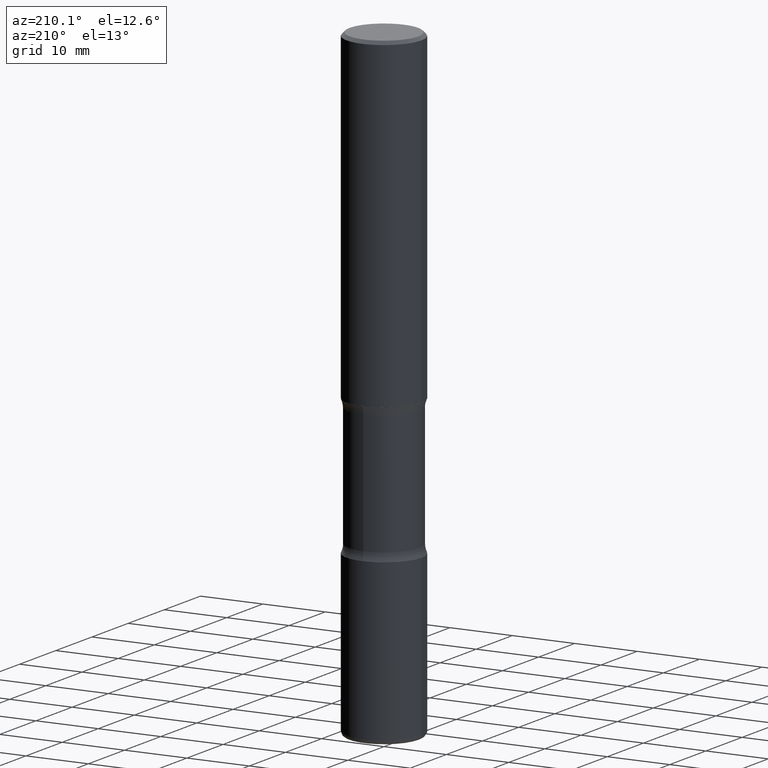
[diagram: clean part render]
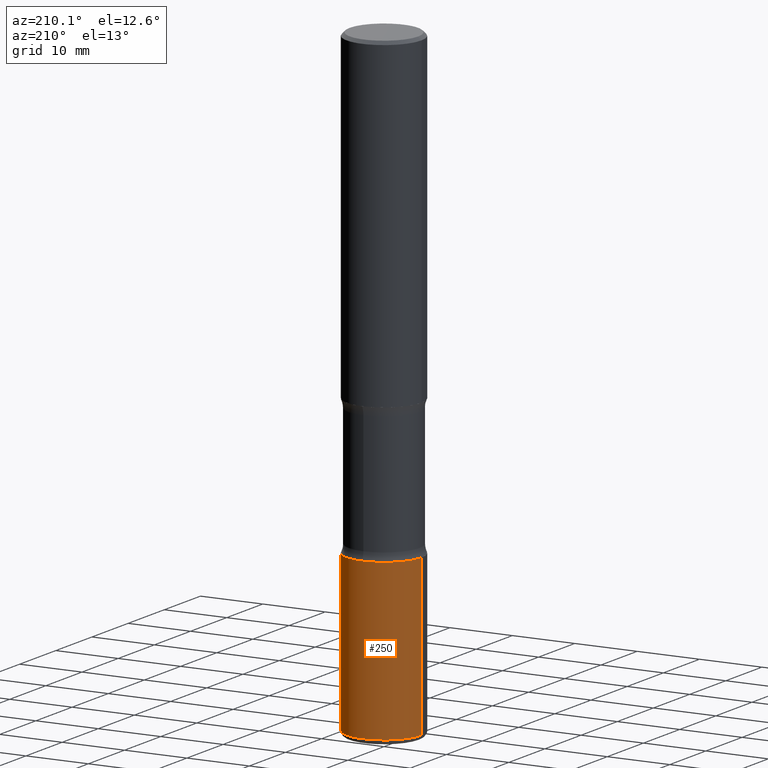
[diagram: same view with one face highlighted and labeled with its STEP entity id]
A machine part, auxiliary view. The second image highlights one B-rep face of the part: STEP entity #250.
In plain terms, the highlighted cylindrical surface (partial cylindrical patch) has radius 5.9995 mm, axis along (-0, 0, 1).
Its self-contained STEP definition (entity closure, byte-faithful):
#8 = CARTESIAN_POINT ( 'NONE',  ( -0.2362000000000002153, 1.678301941865358169E-15, -1.161852468318209878E-29 ) ) ;
#15 = DIRECTION ( 'NONE',  ( 1.000000000000000000, -6.982962677686269077E-15, 0.000000000000000000 ) ) ;
#46 = ORIENTED_EDGE ( 'NONE', *, *, #500, .F. ) ;
#58 = ORIENTED_EDGE ( 'NONE', *, *, #329, .T. ) ;
#79 = DIRECTION ( 'NONE',  ( -2.445468806185136877E-29, 3.491481338843145188E-15, 1.000000000000000000 ) ) ;
#83 = VERTEX_POINT ( 'NONE', #343 ) ;
#97 = CARTESIAN_POINT ( 'NONE',  ( 7.124628819939777829E-29, -1.017208173258562247E-14, -2.913400000000000212 ) ) ;
#110 = VECTOR ( 'NONE', #79, 39.37007874015748143 ) ;
#113 = LINE ( 'NONE', #360, #332 ) ;
#120 = CARTESIAN_POINT ( 'NONE',  ( 0.000000000000000000, 0.000000000000000000, 0.000000000000000000 ) ) ;
#136 = VERTEX_POINT ( 'NONE', #417 ) ;
#138 = DIRECTION ( 'NONE',  ( -2.445468806185136597E-29, 3.491481338843145583E-15, 1.000000000000000000 ) ) ;
#160 = VERTEX_POINT ( 'NONE', #275 ) ;
#162 = FACE_OUTER_BOUND ( 'NONE', #528, .T. ) ;
#170 = DIRECTION ( 'NONE',  ( -2.445468806185136597E-29, 3.491481338843145583E-15, 1.000000000000000000 ) ) ;
#171 = VERTEX_POINT ( 'NONE', #365 ) ;
#174 = AXIS2_PLACEMENT_3D ( 'NONE', #97, #370, #15 ) ;
#176 = DIRECTION ( 'NONE',  ( 1.000000000000000000, -6.982962677686265922E-15, 0.000000000000000000 ) ) ;
#182 = AXIS2_PLACEMENT_3D ( 'NONE', #522, #138, #176 ) ;
#198 = ORIENTED_EDGE ( 'NONE', *, *, #316, .T. ) ;
#235 = CIRCLE ( 'NONE', #174, 0.2362000000000001321 ) ;
#250 = ADVANCED_FACE ( 'NONE', ( #162 ), #379, .T. ) ;
#274 = DIRECTION ( 'NONE',  ( -2.445468806185136877E-29, 3.491481338843145188E-15, 1.000000000000000000 ) ) ;
#275 = CARTESIAN_POINT ( 'NONE',  ( -0.2362000000000000766, -1.196291564899481365E-14, -3.907000000000000028 ) ) ;
#316 = EDGE_CURVE ( 'NONE', #160, #83, #431, .T. ) ;
#324 = CIRCLE ( 'NONE', #182, 0.2362000000000002431 ) ;
#329 = EDGE_CURVE ( 'NONE', #171, #160, #324, .T. ) ;
#332 = VECTOR ( 'NONE', #274, 39.37007874015748143 ) ;
#343 = CARTESIAN_POINT ( 'NONE',  ( -0.2362000000000001321, -1.022834771985753829E-14, -2.913400000000000212 ) ) ;
#360 = CARTESIAN_POINT ( 'NONE',  ( 0.2362000000000002153, -1.649375784469497708E-15, 1.151752954443001069E-29 ) ) ;
#365 = CARTESIAN_POINT ( 'NONE',  ( 0.2362000000000000766, -1.529059337532966657E-14, -3.907000000000000028 ) ) ;
#370 = DIRECTION ( 'NONE',  ( -2.445468806185136597E-29, 3.491481338843145583E-15, 1.000000000000000000 ) ) ;
#379 = CYLINDRICAL_SURFACE ( 'NONE', #452, 0.2362000000000002153 ) ;
#417 = CARTESIAN_POINT ( 'NONE',  ( 0.2362000000000001321, -1.182145751705511899E-14, -2.913400000000000212 ) ) ;
#419 = EDGE_CURVE ( 'NONE', #136, #83, #235, .T. ) ;
#422 = DIRECTION ( 'NONE',  ( 1.000000000000000000, -6.982962677686266711E-15, 4.876176775795935793E-29 ) ) ;
#431 = LINE ( 'NONE', #8, #110 ) ;
#452 = AXIS2_PLACEMENT_3D ( 'NONE', #120, #170, #422 ) ;
#499 = ORIENTED_EDGE ( 'NONE', *, *, #419, .F. ) ;
#500 = EDGE_CURVE ( 'NONE', #171, #136, #113, .T. ) ;
#522 = CARTESIAN_POINT ( 'NONE',  ( 9.554446625765329033E-29, -1.364121759086017004E-14, -3.907000000000000028 ) ) ;
#528 = EDGE_LOOP ( 'NONE', ( #58, #198, #499, #46 ) ) ;